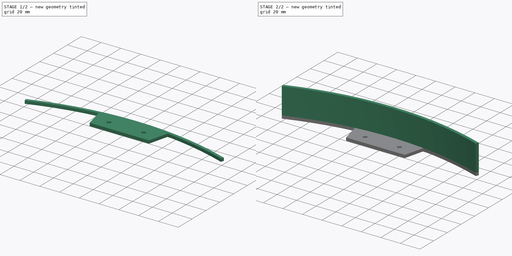
[diagram: build sequence overview — one tinted view per stage of 2, left to right]
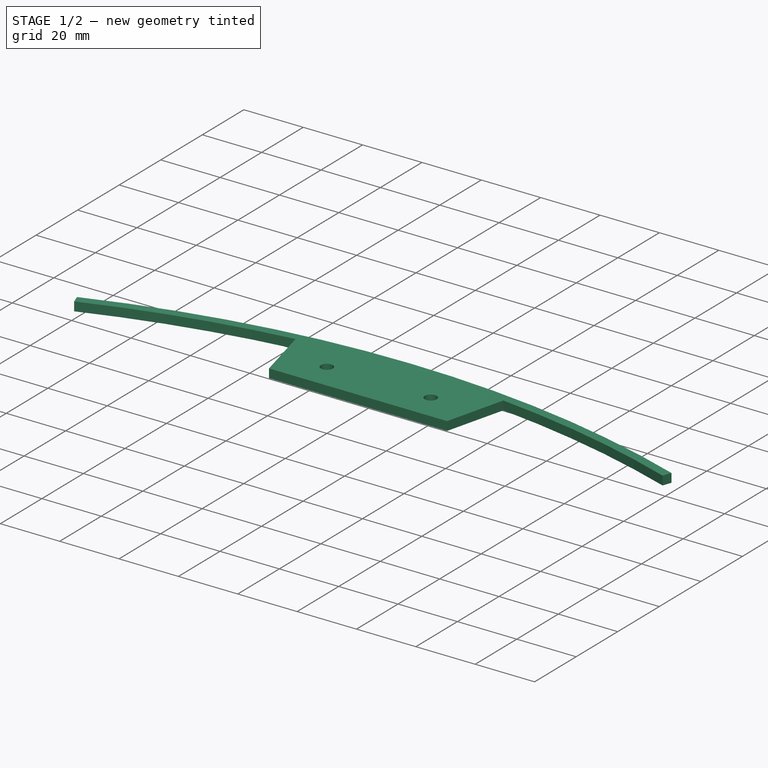
[diagram: stage 1 of 2 — iso view after this stage's code; geometry added in this stage tinted green]
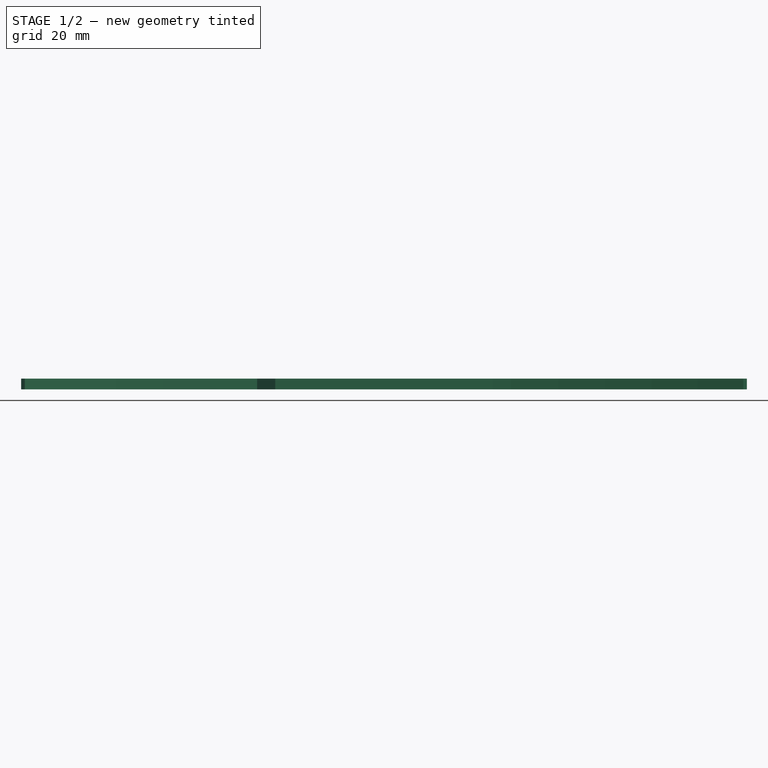
[diagram: stage 1 of 2 — front view after this stage's code; geometry added in this stage tinted green]
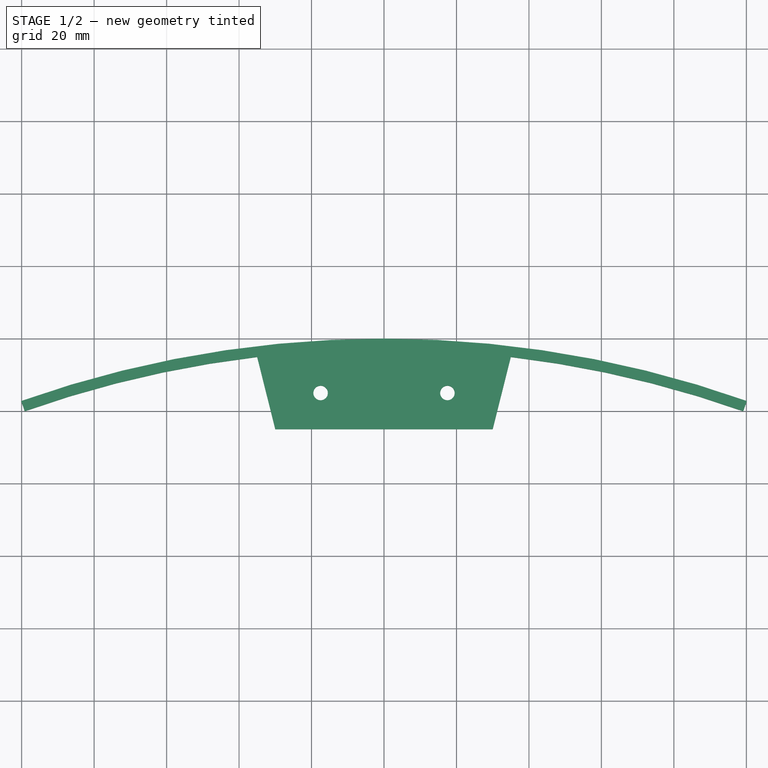
[diagram: stage 1 of 2 — top view after this stage's code; geometry added in this stage tinted green]
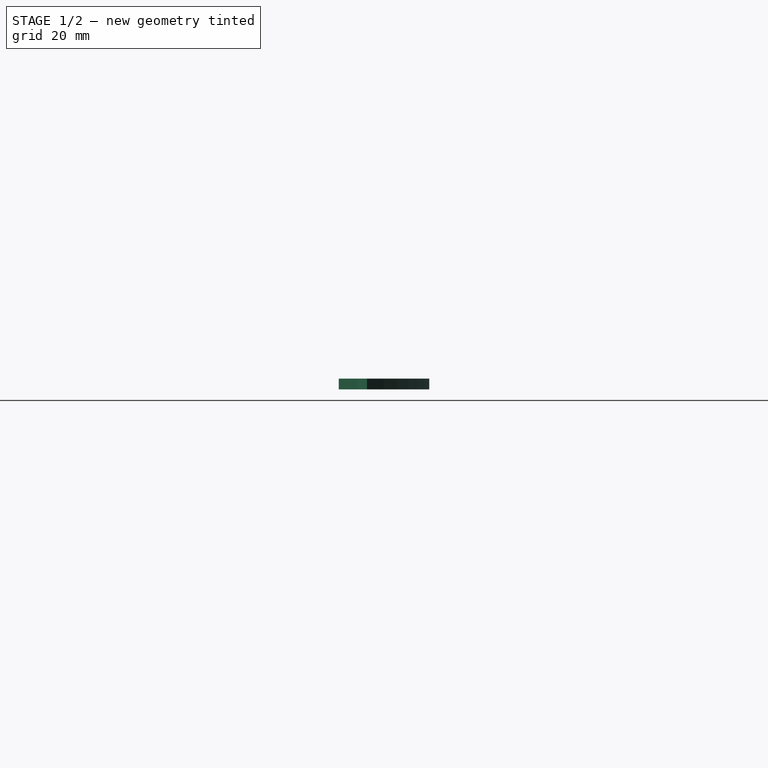
[diagram: stage 1 of 2 — right view after this stage's code; geometry added in this stage tinted green]
FCSTD DOCUMENT  (FreeCAD 2021.717R24301 +3842 (Git))
Label: sinyal1
License: All rights reserved
LicenseURL: http://en.wikipedia.org/wiki/All_rights_reserved
objects: Sketcher::SketchObject×2, PartDesign::Pad×2, PartDesign::Body×1
note: 9 computed .brp shape members not serialized (recipe doc carries the construction recipe); baked Part::Feature solids carry a one-line shape summary decoded from their .brp

FEATURE [Sketcher::SketchObject] Sketch
  FullyConstrained = true
  MapMode = 5
  Support = -> [XY_Plane]
  sketch-geometry (12):
    g0: ArcOfCircle CenterX=1.42e-14 CenterY=0 CenterZ=0 NormalX=0 NormalY=0 NormalZ=1 AngleXU=0 Radius=300 StartAngle=1.23046 EndAngle=1.91114
    g1: LineSegment [constr] StartX=-100.142 StartY=282.792 StartZ=0 EndX=1.42e-14 EndY=0 EndZ=0
    g2: LineSegment [constr] StartX=100.142 StartY=282.792 StartZ=0 EndX=1.42e-14 EndY=0 EndZ=0
    g3: LineSegment StartX=-35 StartY=294.931 StartZ=0 EndX=-30 EndY=275 EndZ=0
    g4: LineSegment StartX=-30 StartY=275 StartZ=0 EndX=30 EndY=275 EndZ=0
    g5: LineSegment StartX=30 StartY=275 StartZ=0 EndX=35 EndY=294.931 EndZ=0
    g6: ArcOfCircle CenterX=1.42e-14 CenterY=0 CenterZ=0 NormalX=0 NormalY=0 NormalZ=1 AngleXU=0 Radius=297 StartAngle=1.68892 EndAngle=1.91114
    g7: ArcOfCircle CenterX=1.42e-14 CenterY=0 CenterZ=0 NormalX=0 NormalY=0 NormalZ=1 AngleXU=0 Radius=297 StartAngle=1.23046 EndAngle=1.45268
    g8: Circle CenterX=-17.5 CenterY=285 CenterZ=0 NormalX=0 NormalY=0 NormalZ=1 AngleXU=0 Radius=2
    g9: Circle CenterX=17.5 CenterY=285 CenterZ=0 NormalX=0 NormalY=0 NormalZ=1 AngleXU=0 Radius=2
    g10: LineSegment StartX=-100.142 StartY=282.792 StartZ=0 EndX=-99.1406 EndY=279.965 EndZ=0
    g11: LineSegment StartX=100.142 StartY=282.792 StartZ=0 EndX=99.1406 EndY=279.965 EndZ=0
  constraints (32):
    c: Coincident(g0,g-1)
    c: Symmetric(g0,g0,g-2)
    c: Radius(g0) = 300
    c: Coincident(g1,g0)
    c: Coincident(g1,g0)
    c: Coincident(g2,g0)
    c: Coincident(g2,g0)
    c: Angle(g2,g1) = 0.680678
    c: Coincident(g3,g4)
    c: Coincident(g4,g5)
    c: Symmetric(g3,g4,g-2)
    c: Coincident(g6,g0)
    c: Coincident(g6,g3)
    c: PointOnObject(g6,g1)
    c: Coincident(g7,g0)
    c: Coincident(g7,g5)
    c: PointOnObject(g7,g2)
    c: Symmetric(g5,g3,g-2)
    c: Radius(g6) = 297
    c: Equal(g6,g7)
    c: DistanceY(g3) = 275
    c: DistanceX(g4,g4) = 60
    c: DistanceX(g3,g5) = 70
    c: Radius(g9) = 2
    c: Equal(g9,g8)
    c: Symmetric(g8,g9,g-2)
    c: DistanceX(g8,g9) = 35
    c: DistanceY(g3,g8) = 10
    c: Coincident(g10,g0)
    c: Coincident(g10,g6)
    c: Coincident(g11,g0)
    c: Coincident(g11,g7)
FEATURE [PartDesign::Pad] Pad
  ClaimChildren = false
  Direction = (1,1,1)
  Fit = 0
  FitJoin = 0
  InnerFit = 0
  InnerFitJoin = 0
  InnerTaperAngle = 0
  InnerTaperAngleRev = 0
  Length = 3
  Length2 = 100
  Linearize = true
  NewSolid = false
  Profile = -> Sketch
  Suppress = false
  Type = 0
  _ProfileBasedVersion = 1
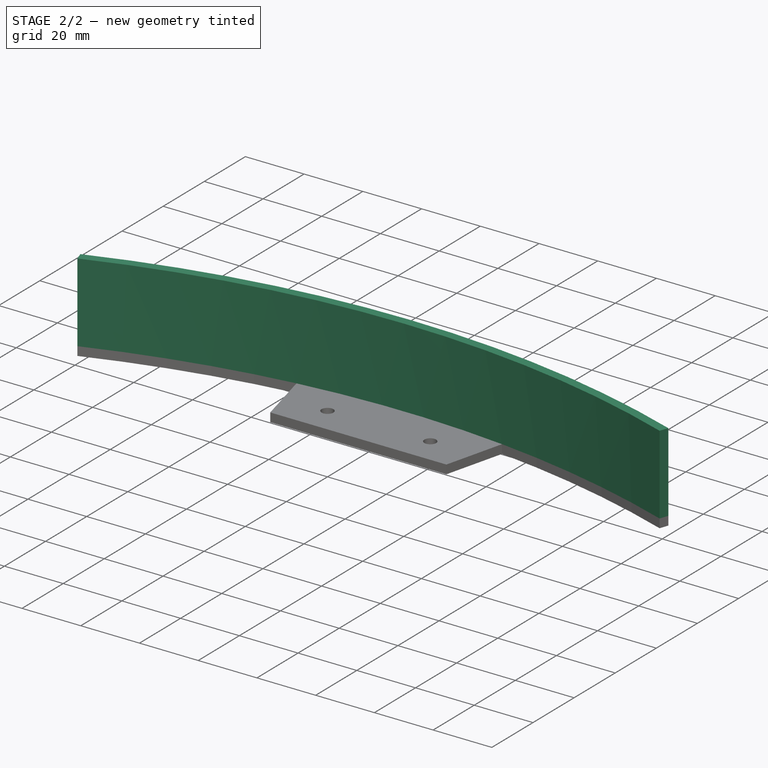
[diagram: stage 2 of 2 — iso view after this stage's code; geometry added in this stage tinted green]
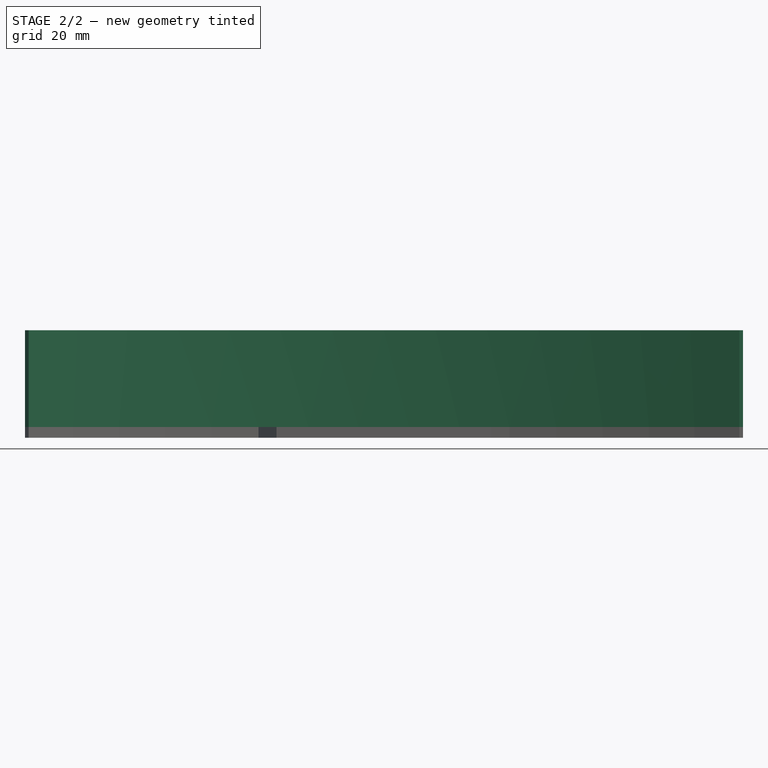
[diagram: stage 2 of 2 — front view after this stage's code; geometry added in this stage tinted green]
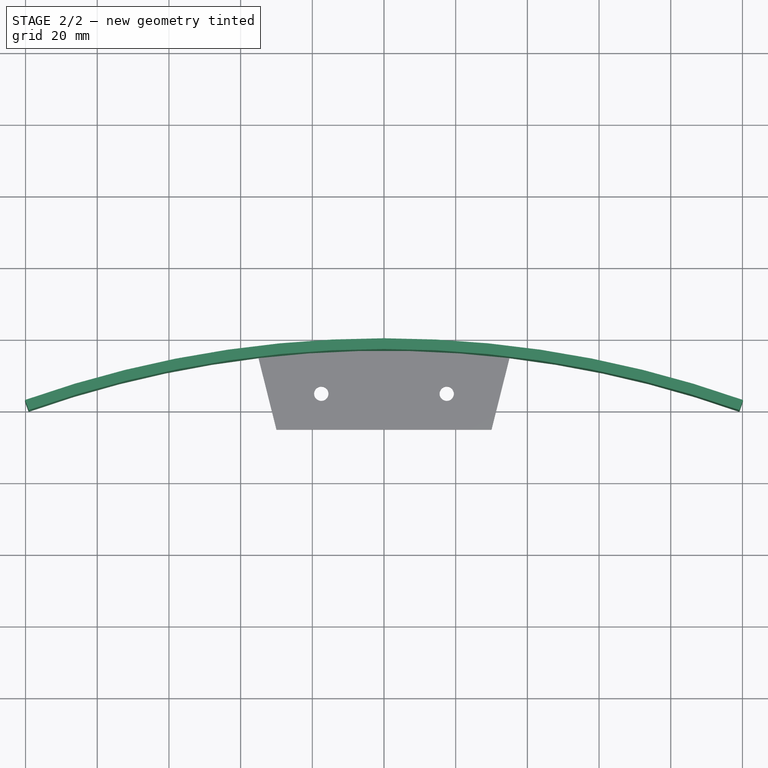
[diagram: stage 2 of 2 — top view after this stage's code; geometry added in this stage tinted green]
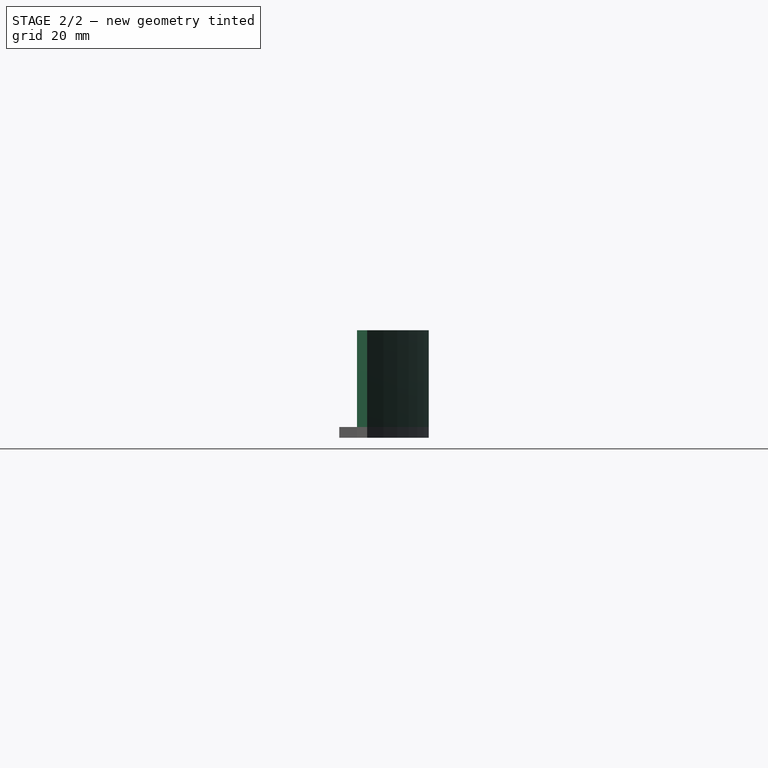
[diagram: stage 2 of 2 — right view after this stage's code; geometry added in this stage tinted green]
FEATURE [Sketcher::SketchObject] Sketch001
  ExternalGeometry = -> [Pad]
  FullyConstrained = true
  MapMode = 5
  Placement = pos=(0,0,3) rot=(0,0,1;0rad)
  Support = -> [Pad]
  sketch-geometry (4):
    g0: ArcOfCircle CenterX=7.18e-14 CenterY=0 CenterZ=0 NormalX=0 NormalY=0 NormalZ=1 AngleXU=0 Radius=300 StartAngle=1.23046 EndAngle=1.91114
    g1: ArcOfCircle CenterX=7.18e-14 CenterY=0 CenterZ=0 NormalX=0 NormalY=0 NormalZ=1 AngleXU=0 Radius=297 StartAngle=1.23046 EndAngle=1.91114
    g2: LineSegment StartX=-100.142 StartY=282.792 StartZ=0 EndX=-99.1406 EndY=279.965 EndZ=0
    g3: LineSegment StartX=100.142 StartY=282.792 StartZ=0 EndX=99.1406 EndY=279.965 EndZ=0
  constraints (10):
    c: Coincident(g0,g-5)
    c: Coincident(g0,g-3)
    c: Coincident(g0,g-3)
    c: Coincident(g1,g0)
    c: Coincident(g1,g-4)
    c: Coincident(g1,g-5)
    c: Coincident(g2,g0)
    c: Coincident(g2,g1)
    c: Coincident(g3,g0)
    c: Coincident(g3,g1)
FEATURE [PartDesign::Pad] Pad001
  BaseFeature = -> Pad
  ClaimChildren = false
  Direction = (1,1,1)
  Fit = 0
  FitJoin = 0
  InnerFit = 0
  InnerFitJoin = 0
  InnerTaperAngle = 0
  InnerTaperAngleRev = 0
  Length = 27
  Length2 = 100
  Linearize = true
  NewSolid = false
  Profile = -> Sketch001
  Suppress = false
  Type = 0
  _ProfileBasedVersion = 1
FEATURE [PartDesign::Body] Body
  AutoGroupSolids = false
  ExportMode = 0
  Group = -> [Sketch,Pad,Sketch001,Pad001]
  Origin = -> Origin
  Tip = -> Pad001
  _ExportChildren = -> [Pad,Pad001]
  _GroupVersion = 1
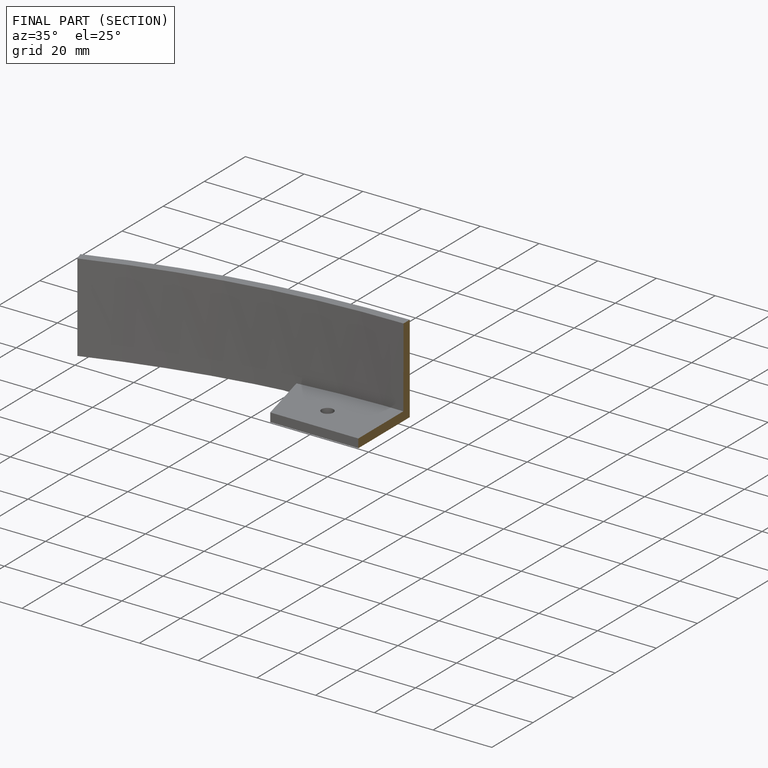
[diagram: finished part — half-section view (interior)]
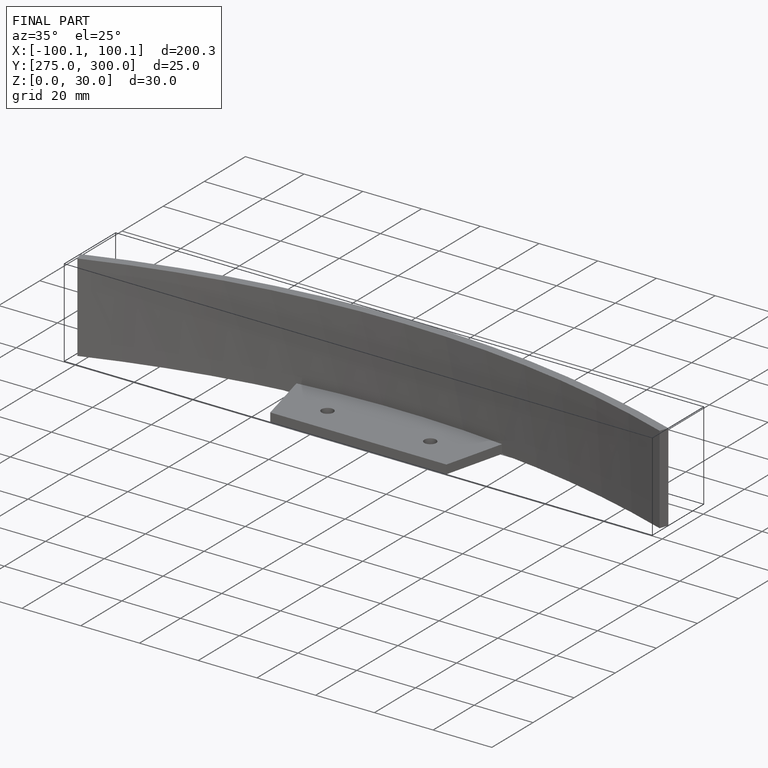
[diagram: finished part — iso view with bounding-box wireframe]
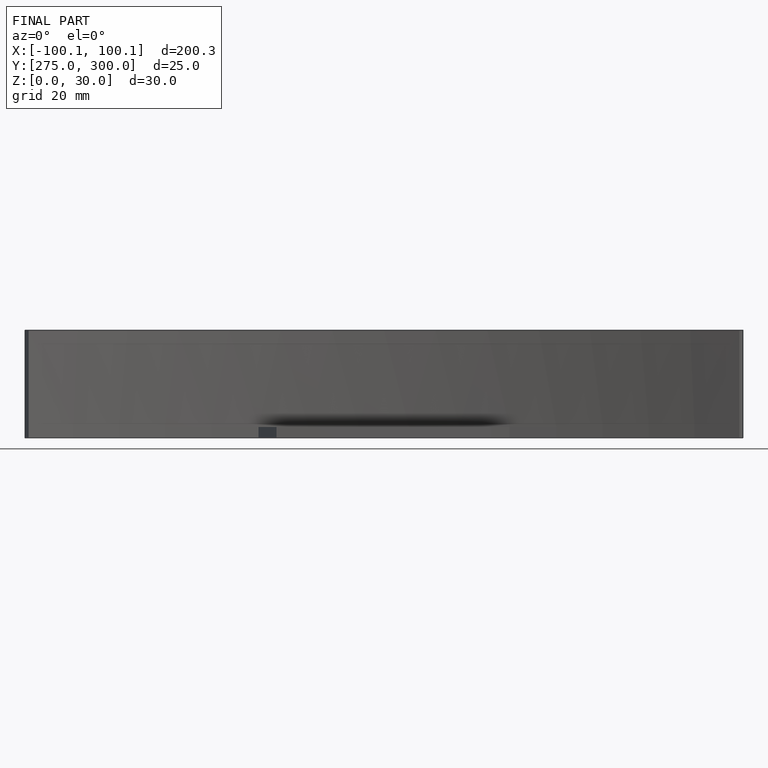
[diagram: finished part — front view with bounding-box wireframe]
